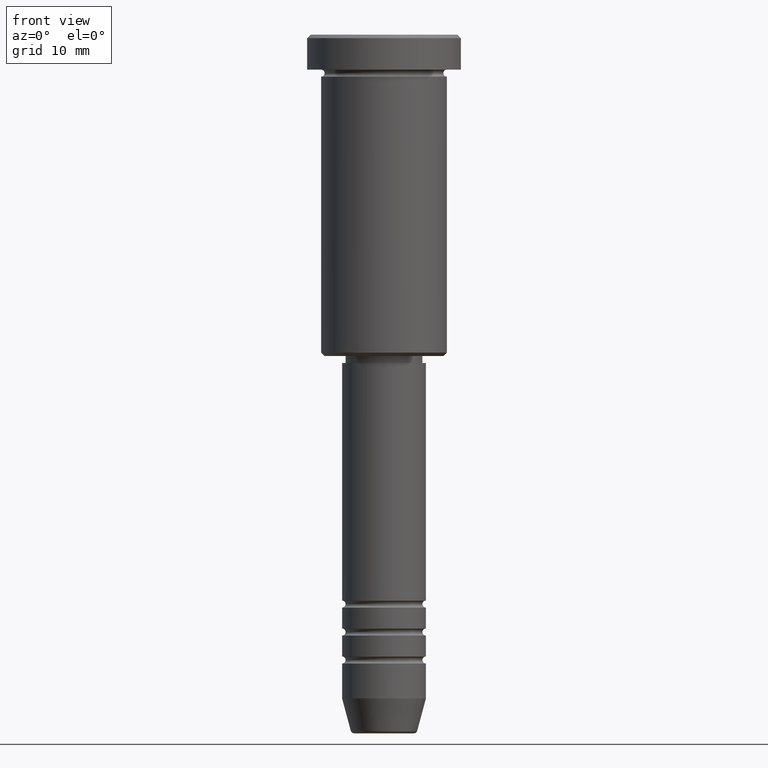
[diagram: clean part render]
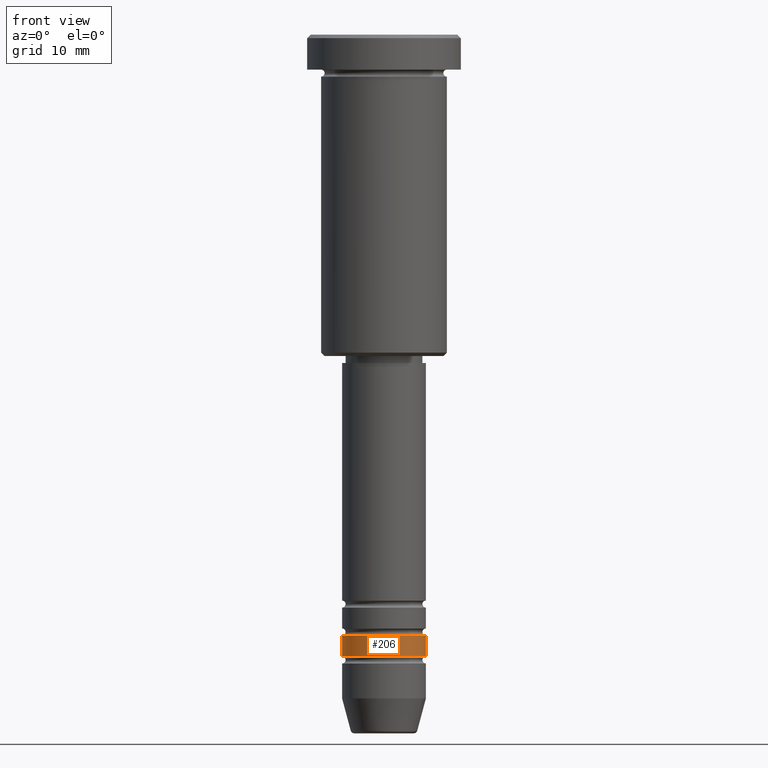
[diagram: same view with one face highlighted and labeled with its STEP entity id]
A machine part, front view. The second image highlights one B-rep face of the part: STEP entity #206.
In plain terms, the highlighted cylindrical surface (partial cylindrical patch) has radius 6 mm, axis along (-0, -0, 1).
Its self-contained STEP definition (entity closure, byte-faithful):
#24 = CARTESIAN_POINT ( 'NONE',  ( -6.000000000000000000, 7.347880794884119736E-16, 0.000000000000000000 ) ) ;
#78 = LINE ( 'NONE', #445, #165 ) ;
#104 = EDGE_CURVE ( 'NONE', #236, #126, #78, .T. ) ;
#122 = ORIENTED_EDGE ( 'NONE', *, *, #142, .F. ) ;
#126 = VERTEX_POINT ( 'NONE', #644 ) ;
#142 = EDGE_CURVE ( 'NONE', #451, #504, #399, .T. ) ;
#165 = VECTOR ( 'NONE', #262, 1000.000000000000000 ) ;
#206 = ADVANCED_FACE ( 'NONE', ( #732 ), #743, .T. ) ;
#219 = ORIENTED_EDGE ( 'NONE', *, *, #104, .T. ) ;
#236 = VERTEX_POINT ( 'NONE', #283 ) ;
#238 = EDGE_LOOP ( 'NONE', ( #122, #393, #219, #843 ) ) ;
#262 = DIRECTION ( 'NONE',  ( -0.000000000000000000, -0.000000000000000000, 1.000000000000000000 ) ) ;
#282 = EDGE_CURVE ( 'NONE', #451, #236, #368, .T. ) ;
#283 = CARTESIAN_POINT ( 'NONE',  ( 6.000000000000000000, 0.000000000000000000, -88.99999999999998579 ) ) ;
#349 = AXIS2_PLACEMENT_3D ( 'NONE', #1023, #929, #1120 ) ;
#368 = CIRCLE ( 'NONE', #349, 6.000000000000000000 ) ;
#388 = DIRECTION ( 'NONE',  ( -0.000000000000000000, -0.000000000000000000, 1.000000000000000000 ) ) ;
#393 = ORIENTED_EDGE ( 'NONE', *, *, #282, .T. ) ;
#399 = LINE ( 'NONE', #24, #868 ) ;
#445 = CARTESIAN_POINT ( 'NONE',  ( 6.000000000000000000, 0.000000000000000000, 0.000000000000000000 ) ) ;
#451 = VERTEX_POINT ( 'NONE', #876 ) ;
#452 = CARTESIAN_POINT ( 'NONE',  ( 0.000000000000000000, 0.000000000000000000, -86.00000000000000000 ) ) ;
#504 = VERTEX_POINT ( 'NONE', #807 ) ;
#546 = EDGE_CURVE ( 'NONE', #504, #126, #571, .T. ) ;
#554 = AXIS2_PLACEMENT_3D ( 'NONE', #452, #1084, #993 ) ;
#571 = CIRCLE ( 'NONE', #554, 5.999999999999999112 ) ;
#644 = CARTESIAN_POINT ( 'NONE',  ( 5.999999999999999112, 0.000000000000000000, -86.00000000000000000 ) ) ;
#732 = FACE_OUTER_BOUND ( 'NONE', #238, .T. ) ;
#743 = CYLINDRICAL_SURFACE ( 'NONE', #874, 6.000000000000000000 ) ;
#753 = DIRECTION ( 'NONE',  ( 1.000000000000000000, 0.000000000000000000, 0.000000000000000000 ) ) ;
#807 = CARTESIAN_POINT ( 'NONE',  ( -5.999999999999999112, 7.347880794884118750E-16, -86.00000000000000000 ) ) ;
#843 = ORIENTED_EDGE ( 'NONE', *, *, #546, .F. ) ;
#868 = VECTOR ( 'NONE', #388, 1000.000000000000000 ) ;
#874 = AXIS2_PLACEMENT_3D ( 'NONE', #1100, #936, #753 ) ;
#876 = CARTESIAN_POINT ( 'NONE',  ( -6.000000000000000000, 7.347880794884119736E-16, -88.99999999999998579 ) ) ;
#929 = DIRECTION ( 'NONE',  ( -0.000000000000000000, -0.000000000000000000, 1.000000000000000000 ) ) ;
#936 = DIRECTION ( 'NONE',  ( -0.000000000000000000, -0.000000000000000000, 1.000000000000000000 ) ) ;
#993 = DIRECTION ( 'NONE',  ( 1.000000000000000000, 0.000000000000000000, 0.000000000000000000 ) ) ;
#1023 = CARTESIAN_POINT ( 'NONE',  ( 0.000000000000000000, 0.000000000000000000, -88.99999999999998579 ) ) ;
#1084 = DIRECTION ( 'NONE',  ( -0.000000000000000000, -0.000000000000000000, 1.000000000000000000 ) ) ;
#1100 = CARTESIAN_POINT ( 'NONE',  ( 0.000000000000000000, 0.000000000000000000, 0.000000000000000000 ) ) ;
#1120 = DIRECTION ( 'NONE',  ( 1.000000000000000000, 0.000000000000000000, 0.000000000000000000 ) ) ;